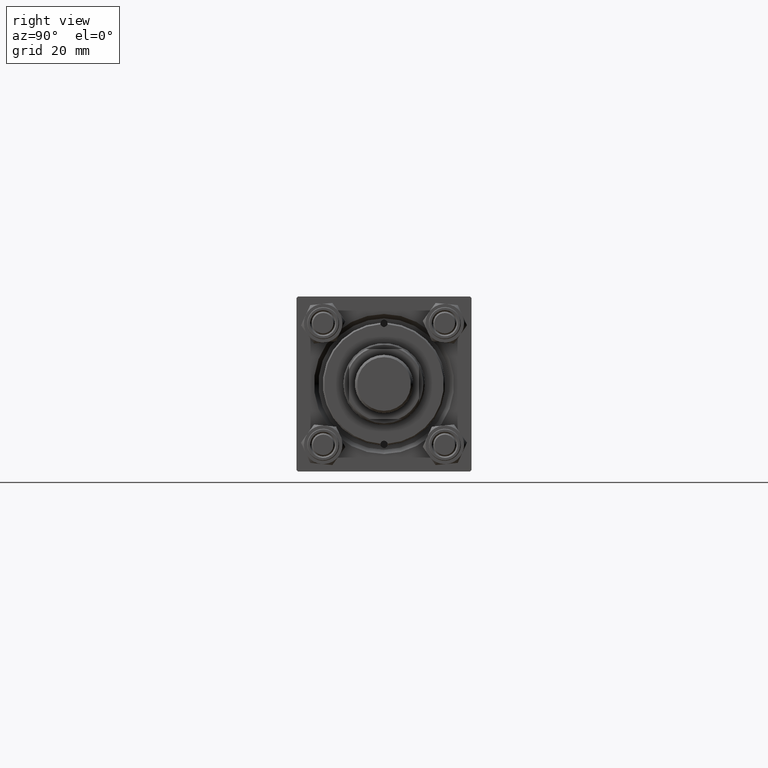
[diagram: clean part render]
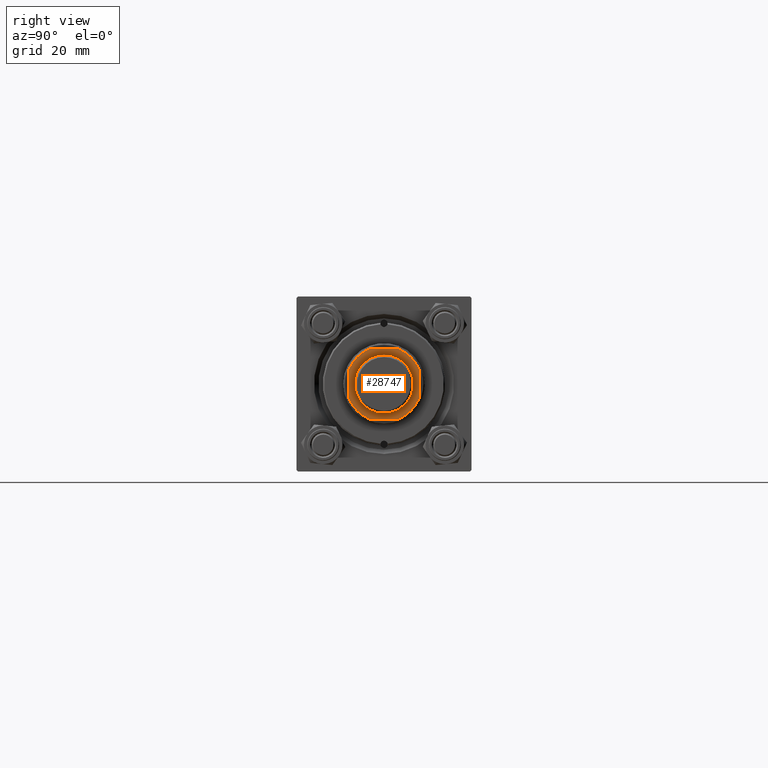
[diagram: same view with one face highlighted and labeled with its STEP entity id]
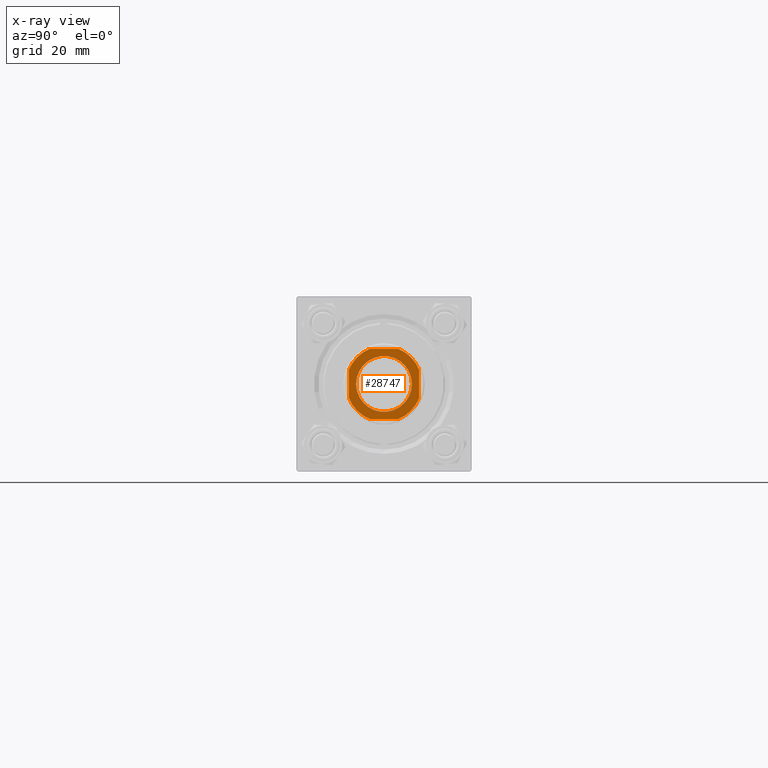
[diagram: x-ray of the same camera — body ghosted, the highlighted face saturated]
A machine part, right view. The second image highlights one B-rep face of the part: STEP entity #28747.
The next image is the same camera in x-ray: the body ghosted, the highlighted face saturated — about 0% of this face is hidden behind the body in this view.
In plain terms, the highlighted planar face has unit normal (1, 0, -0).
Its self-contained STEP definition (entity closure, byte-faithful):
#128 = CARTESIAN_POINT ( 'NONE',  ( 0.000000000000000000, 0.000000000000000000, 136.0000000000000000 ) ) ;
#422 = DIRECTION ( 'NONE',  ( 1.000000000000000000, 0.000000000000000000, 0.000000000000000000 ) ) ;
#558 = EDGE_LOOP ( 'NONE', ( #47369, #5775, #24595, #50213, #38450, #13483, #23291, #12682 ) ) ;
#1539 = VERTEX_POINT ( 'NONE', #23700 ) ;
#1682 = EDGE_CURVE ( 'NONE', #32009, #11985, #40760, .T. ) ;
#3227 = LINE ( 'NONE', #22422, #11995 ) ;
#4938 = EDGE_LOOP ( 'NONE', ( #5542, #48467 ) ) ;
#5542 = ORIENTED_EDGE ( 'NONE', *, *, #29505, .T. ) ;
#5716 = CARTESIAN_POINT ( 'NONE',  ( -12.00000000000000000, 11.99999999999999645, 136.0000000000000000 ) ) ;
#5775 = ORIENTED_EDGE ( 'NONE', *, *, #24484, .T. ) ;
#7514 = FACE_BOUND ( 'NONE', #4938, .T. ) ;
#7647 = DIRECTION ( 'NONE',  ( 1.000000000000000000, 0.000000000000000000, 0.000000000000000000 ) ) ;
#7758 = DIRECTION ( 'NONE',  ( -0.000000000000000000, 0.000000000000000000, 1.000000000000000000 ) ) ;
#7925 = CARTESIAN_POINT ( 'NONE',  ( 9.549999999999975842, 0.000000000000000000, 136.0000000000000000 ) ) ;
#8079 = EDGE_CURVE ( 'NONE', #11734, #23557, #3227, .T. ) ;
#8641 = CARTESIAN_POINT ( 'NONE',  ( -11.99999999999999822, -12.00000000000000355, 136.0000000000000000 ) ) ;
#8682 = DIRECTION ( 'NONE',  ( -0.000000000000000000, 0.000000000000000000, 1.000000000000000000 ) ) ;
#10151 = CIRCLE ( 'NONE', #36269, 12.99999999999999289 ) ;
#10203 = CARTESIAN_POINT ( 'NONE',  ( -5.000000000000031086, -12.00000000000000355, 136.0000000000000000 ) ) ;
#11218 = VECTOR ( 'NONE', #21320, 1000.000000000000000 ) ;
#11697 = AXIS2_PLACEMENT_3D ( 'NONE', #47367, #7758, #50195 ) ;
#11734 = VERTEX_POINT ( 'NONE', #27058 ) ;
#11985 = VERTEX_POINT ( 'NONE', #17833 ) ;
#11995 = VECTOR ( 'NONE', #34195, 1000.000000000000000 ) ;
#12209 = CIRCLE ( 'NONE', #30223, 9.549999999999975842 ) ;
#12682 = ORIENTED_EDGE ( 'NONE', *, *, #46238, .T. ) ;
#12945 = DIRECTION ( 'NONE',  ( 0.000000000000000000, -0.000000000000000000, -1.000000000000000000 ) ) ;
#13483 = ORIENTED_EDGE ( 'NONE', *, *, #45796, .T. ) ;
#13771 = CARTESIAN_POINT ( 'NONE',  ( 5.000000000000053291, -12.00000000000000355, 136.0000000000000000 ) ) ;
#16295 = CARTESIAN_POINT ( 'NONE',  ( 11.99999999999999822, 5.000000000000037303, 136.0000000000000000 ) ) ;
#16903 = AXIS2_PLACEMENT_3D ( 'NONE', #20446, #8682, #27860 ) ;
#17833 = CARTESIAN_POINT ( 'NONE',  ( -4.999999999999987566, 11.99999999999999645, 136.0000000000000000 ) ) ;
#18895 = VERTEX_POINT ( 'NONE', #10203 ) ;
#18931 = VECTOR ( 'NONE', #7647, 1000.000000000000000 ) ;
#19033 = EDGE_CURVE ( 'NONE', #1539, #50048, #12209, .T. ) ;
#19090 = LINE ( 'NONE', #42623, #25386 ) ;
#19109 = CIRCLE ( 'NONE', #29752, 9.549999999999975842 ) ;
#19313 = DIRECTION ( 'NONE',  ( -0.000000000000000000, 0.000000000000000000, 1.000000000000000000 ) ) ;
#19783 = VERTEX_POINT ( 'NONE', #16295 ) ;
#20446 = CARTESIAN_POINT ( 'NONE',  ( 0.000000000000000000, 0.000000000000000000, 136.0000000000000000 ) ) ;
#21320 = DIRECTION ( 'NONE',  ( -1.000000000000000000, -0.000000000000000000, -0.000000000000000000 ) ) ;
#21537 = EDGE_CURVE ( 'NONE', #30567, #19783, #19090, .T. ) ;
#22422 = CARTESIAN_POINT ( 'NONE',  ( -12.00000000000000000, 11.99999999999999645, 136.0000000000000000 ) ) ;
#22731 = CARTESIAN_POINT ( 'NONE',  ( 0.000000000000000000, 0.000000000000000000, 136.0000000000000000 ) ) ;
#22993 = CIRCLE ( 'NONE', #40997, 13.00000000000001243 ) ;
#23291 = ORIENTED_EDGE ( 'NONE', *, *, #24422, .T. ) ;
#23557 = VERTEX_POINT ( 'NONE', #41536 ) ;
#23700 = CARTESIAN_POINT ( 'NONE',  ( -9.549999999999975842, 1.169537693185719205E-15, 136.0000000000000000 ) ) ;
#24422 = EDGE_CURVE ( 'NONE', #18895, #43792, #43674, .T. ) ;
#24484 = EDGE_CURVE ( 'NONE', #19783, #32009, #22993, .T. ) ;
#24595 = ORIENTED_EDGE ( 'NONE', *, *, #1682, .T. ) ;
#25386 = VECTOR ( 'NONE', #38298, 1000.000000000000000 ) ;
#27058 = CARTESIAN_POINT ( 'NONE',  ( -12.00000000000000000, 4.999999999999979572, 136.0000000000000000 ) ) ;
#27488 = DIRECTION ( 'NONE',  ( 1.000000000000000000, 0.000000000000000000, 0.000000000000000000 ) ) ;
#27860 = DIRECTION ( 'NONE',  ( 1.000000000000000000, 0.000000000000000000, 0.000000000000000000 ) ) ;
#28747 = ADVANCED_FACE ( 'NONE', ( #7514, #42542 ), #42781, .T. ) ;
#29505 = EDGE_CURVE ( 'NONE', #50048, #1539, #19109, .T. ) ;
#29752 = AXIS2_PLACEMENT_3D ( 'NONE', #22731, #30407, #42170 ) ;
#30223 = AXIS2_PLACEMENT_3D ( 'NONE', #46726, #12945, #422 ) ;
#30407 = DIRECTION ( 'NONE',  ( 0.000000000000000000, -0.000000000000000000, -1.000000000000000000 ) ) ;
#30567 = VERTEX_POINT ( 'NONE', #48014 ) ;
#32009 = VERTEX_POINT ( 'NONE', #44328 ) ;
#33999 = CIRCLE ( 'NONE', #36444, 13.00000000000002309 ) ;
#34195 = DIRECTION ( 'NONE',  ( 7.228014483236695816E-17, -1.000000000000000000, 0.000000000000000000 ) ) ;
#34411 = EDGE_CURVE ( 'NONE', #11985, #11734, #10151, .T. ) ;
#36269 = AXIS2_PLACEMENT_3D ( 'NONE', #128, #19313, #27488 ) ;
#36444 = AXIS2_PLACEMENT_3D ( 'NONE', #44613, #40524, #45126 ) ;
#38298 = DIRECTION ( 'NONE',  ( -2.891205793294678326E-16, 1.000000000000000000, -0.000000000000000000 ) ) ;
#38450 = ORIENTED_EDGE ( 'NONE', *, *, #8079, .T. ) ;
#38961 = CIRCLE ( 'NONE', #16903, 13.00000000000001421 ) ;
#39101 = DIRECTION ( 'NONE',  ( -0.000000000000000000, 0.000000000000000000, 1.000000000000000000 ) ) ;
#40524 = DIRECTION ( 'NONE',  ( -0.000000000000000000, 0.000000000000000000, 1.000000000000000000 ) ) ;
#40760 = LINE ( 'NONE', #5716, #11218 ) ;
#40997 = AXIS2_PLACEMENT_3D ( 'NONE', #43179, #39101, #50590 ) ;
#41536 = CARTESIAN_POINT ( 'NONE',  ( -12.00000000000000000, -5.000000000000039968, 136.0000000000000000 ) ) ;
#42170 = DIRECTION ( 'NONE',  ( 1.000000000000000000, 0.000000000000000000, 0.000000000000000000 ) ) ;
#42542 = FACE_OUTER_BOUND ( 'NONE', #558, .T. ) ;
#42623 = CARTESIAN_POINT ( 'NONE',  ( 11.99999999999999645, 11.99999999999999645, 136.0000000000000000 ) ) ;
#42781 = PLANE ( 'NONE',  #11697 ) ;
#43179 = CARTESIAN_POINT ( 'NONE',  ( 0.000000000000000000, 0.000000000000000000, 136.0000000000000000 ) ) ;
#43674 = LINE ( 'NONE', #8641, #18931 ) ;
#43792 = VERTEX_POINT ( 'NONE', #13771 ) ;
#44328 = CARTESIAN_POINT ( 'NONE',  ( 5.000000000000042633, 11.99999999999999645, 136.0000000000000000 ) ) ;
#44613 = CARTESIAN_POINT ( 'NONE',  ( 0.000000000000000000, 0.000000000000000000, 136.0000000000000000 ) ) ;
#45126 = DIRECTION ( 'NONE',  ( 1.000000000000000000, 0.000000000000000000, 0.000000000000000000 ) ) ;
#45796 = EDGE_CURVE ( 'NONE', #23557, #18895, #38961, .T. ) ;
#46238 = EDGE_CURVE ( 'NONE', #43792, #30567, #33999, .T. ) ;
#46726 = CARTESIAN_POINT ( 'NONE',  ( 0.000000000000000000, 0.000000000000000000, 136.0000000000000000 ) ) ;
#47367 = CARTESIAN_POINT ( 'NONE',  ( 0.000000000000000000, 0.000000000000000000, 136.0000000000000000 ) ) ;
#47369 = ORIENTED_EDGE ( 'NONE', *, *, #21537, .T. ) ;
#48014 = CARTESIAN_POINT ( 'NONE',  ( 12.00000000000000178, -5.000000000000056843, 136.0000000000000000 ) ) ;
#48467 = ORIENTED_EDGE ( 'NONE', *, *, #19033, .T. ) ;
#50048 = VERTEX_POINT ( 'NONE', #7925 ) ;
#50195 = DIRECTION ( 'NONE',  ( 1.000000000000000000, 0.000000000000000000, 0.000000000000000000 ) ) ;
#50213 = ORIENTED_EDGE ( 'NONE', *, *, #34411, .T. ) ;
#50590 = DIRECTION ( 'NONE',  ( 1.000000000000000000, 0.000000000000000000, 0.000000000000000000 ) ) ;